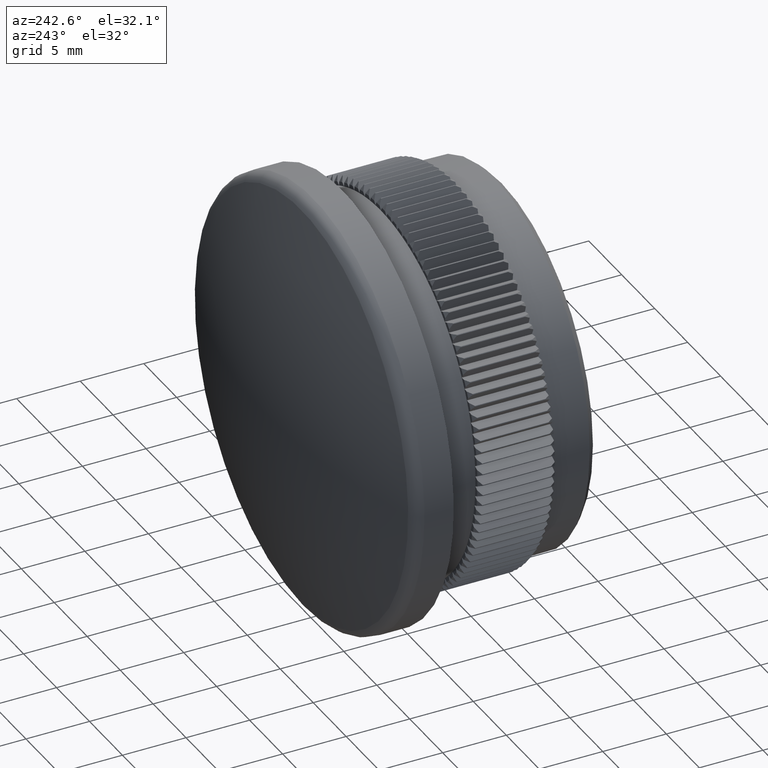
[diagram: clean part render]
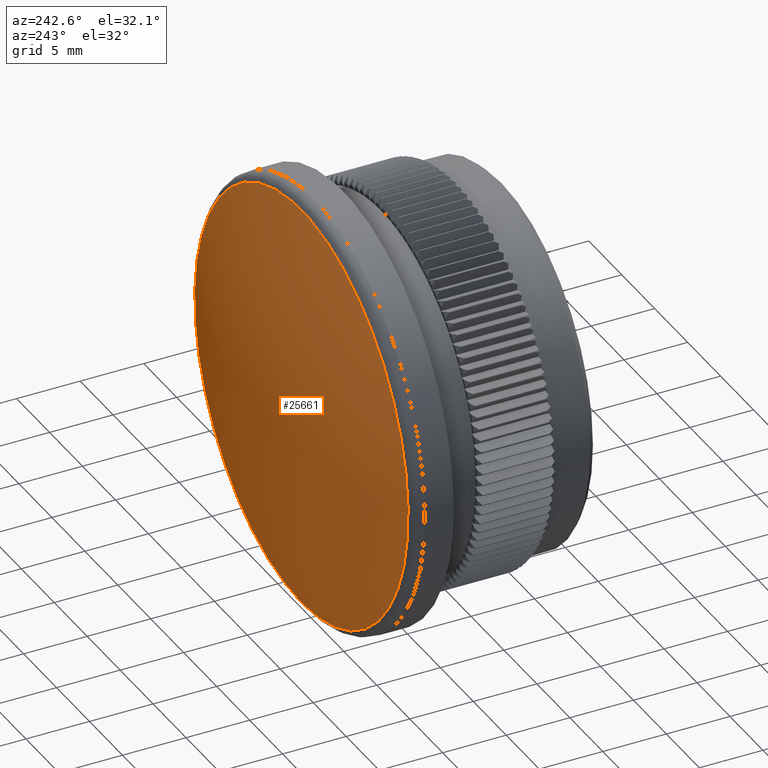
[diagram: same view with one face highlighted and labeled with its STEP entity id]
A machine part, auxiliary view. The second image highlights one B-rep face of the part: STEP entity #25661.
In plain terms, the highlighted spherical surface has radius 48.8204 mm.
Its self-contained STEP definition (entity closure, byte-faithful):
#4604 = VERTEX_POINT ( 'NONE', #14091 ) ;
#7120 = AXIS2_PLACEMENT_3D ( 'NONE', #28275, #15997, #18824 ) ;
#10156 = CIRCLE ( 'NONE', #7120, 16.18144838763080500 ) ;
#14091 = CARTESIAN_POINT ( 'NONE',  ( 0.0000000000000000000, 15.74034550229203000, -16.18144838763080500 ) ) ;
#15741 = DIRECTION ( 'NONE',  ( 0.0000000000000000000, 0.0000000000000000000, 1.000000000000000000 ) ) ;
#15997 = DIRECTION ( 'NONE',  ( 0.0000000000000000000, 1.000000000000000000, 0.0000000000000000000 ) ) ;
#18824 = DIRECTION ( 'NONE',  ( 0.0000000000000000000, 0.0000000000000000000, -1.000000000000000000 ) ) ;
#22211 = EDGE_CURVE ( 'NONE', #4604, #4604, #10156, .T. ) ;
#25371 = SPHERICAL_SURFACE ( 'NONE', #29361, 48.82041666666363300 ) ;
#25661 = ADVANCED_FACE ( 'NONE', ( #36441 ), #25371, .T. ) ;
#26648 = ORIENTED_EDGE ( 'NONE', *, *, #22211, .T. ) ;
#27888 = EDGE_LOOP ( 'NONE', ( #26648 ) ) ;
#28275 = CARTESIAN_POINT ( 'NONE',  ( 0.0000000000000000000, 15.74034550229203000, 0.0000000000000000000 ) ) ;
#29361 = AXIS2_PLACEMENT_3D ( 'NONE', #32493, #15741, #35454 ) ;
#32493 = CARTESIAN_POINT ( 'NONE',  ( 0.0000000000000000000, -30.32041666666353300, 0.0000000000000000000 ) ) ;
#35454 = DIRECTION ( 'NONE',  ( 1.000000000000000000, 0.0000000000000000000, 0.0000000000000000000 ) ) ;
#36441 = FACE_OUTER_BOUND ( 'NONE', #27888, .T. ) ;